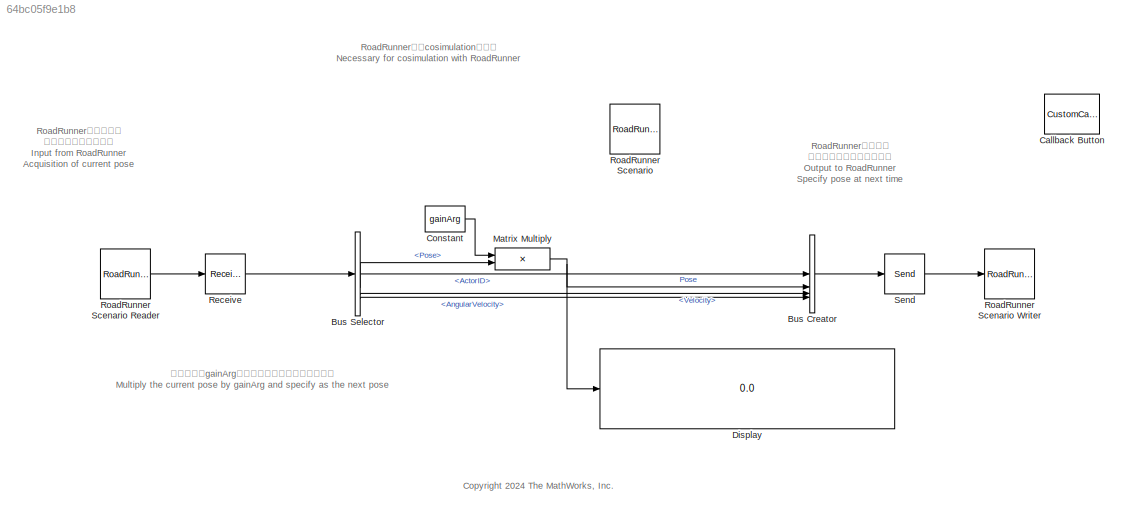
MODEL slx_64bc05f9e1b8
KIND model
CONFIG AbsTol = auto
CONFIG EnableMultiTasking = off
CONFIG FixedStep = simStepSize
CONFIG MaxStep = auto
CONFIG MinStep = auto
CONFIG PreLoadFcn = % To support Reader and Writer blocks, some bus objects must be loaded\nloadRoadRunnerBusObject();
CONFIG RelTol = 1e-3
CONFIG SampleTimeConstraint = Unconstrained
CONFIG SolverName = FixedStepAuto
CONFIG StartTime = 0
CONFIG StopTime = 1000
BLOCK [BusCreator] Bus Creator
  DisplayOption = bar
  InheritFromInputs = on
  Inputs = 4
  NonVirtualBus = on
  OutDataTypeStr = Bus: BusActorRuntime
BLOCK [BusSelector] Bus Selector
  OutputSignals = ActorID,Pose,Velocity,AngularVelocity
BLOCK [CustomCallbackButton] Callback Button
  Configuration = {"components":[{"name":"BackgroundImageComponent","settings":{"image":{"size":[0,0],"src":"default","srcOrientation":"Right"},"position":[0,0,1,1]}},{"name":"ButtonStateComponent","settings":{"buttonType":"momentary","clickFcn":"helpview('driving','SimulateRoadRunnerwithSimulink')","onValue":1,"position":[0,0,1,1],"pressDelay":"500","pressFcn":"","repeatInterval":"0","states":[{"horizontalAlignmen...<+1759ch>
  CustomBackgroundColor = {"color":[0.9568627451,0.9568627451,0.9568627451],"show":true}
BLOCK [Constant] Constant
  Value = gainArg
  VectorParams1D = off
BLOCK [Display] Display
  Decimation = 1
BLOCK [Product] Matrix Multiply
  Multiplication = Matrix(*)
BLOCK [Receive] Receive
  InputPortMap = u0
  InputPortMessageModes = m
  OutputPortMap = o1
  QueueLength = 1
  QueueOverwriting = on
  QueueType = LIFO
  UseInternalQueue = off
BLOCK [Reference] RoadRunner Scenario  REF=roadrunnerscenario/RoadRunner Scenario
  SourceBlock = roadrunnerscenario/RoadRunner Scenario
BLOCK [RoadRunnerScenarioReader] RoadRunner Scenario Reader
  OutputPortMap = o0
  OutputPortMessageModes = m
  SampleTime = simStepSize
  TopicType = Actor Pose
  VehicleType = Vehicle Specifications
BLOCK [RoadRunnerScenarioWriter] RoadRunner Scenario Writer
  InputPortMap = u0
  InputPortMessageModes = m
  TopicType = Actor Pose
  VehicleType = Vehicle Pose
BLOCK [Send] Send
  InputPortMap = u1
  OutputPortMessageModes = m
ANNOTATION (root): <copyright redacted>
ANNOTATION (root): RoadRunnerからの入力 現在位置・姿勢の取得 Input from RoadRunner Acquisition of current pose
ANNOTATION (root): RoadRunnerとのcosimulationに必要 Necessary for cosimulation with RoadRunner
ANNOTATION (root): RoadRunnerへの出力 次時刻の位置・姿勢を指定 Output to RoadRunner Specify pose at next time
ANNOTATION (root): 現在姿勢にgainArgを乗算して次の姿勢として指定 Multiply the current pose by gainArg and specify as the next pose
LINE Bus Creator:1 -> Send:1
LINE Bus Selector:1 -> Bus Creator:1
LINE Bus Selector:2 -> Matrix Multiply:2
LINE Bus Selector:3 -> Bus Creator:3
LINE Bus Selector:4 -> Bus Creator:4
LINE Constant:1 -> Matrix Multiply:1
NET Matrix Multiply:1 -> Bus Creator:2, Display:1
LINE Receive:1 -> Bus Selector:1
LINE RoadRunner Scenario Reader:1 -> Receive:1
LINE Send:1 -> RoadRunner Scenario Writer:1
note: NET lines group one-source signal fan-out (src -> all destinations, sorted); 1:1 wires keep LINE
